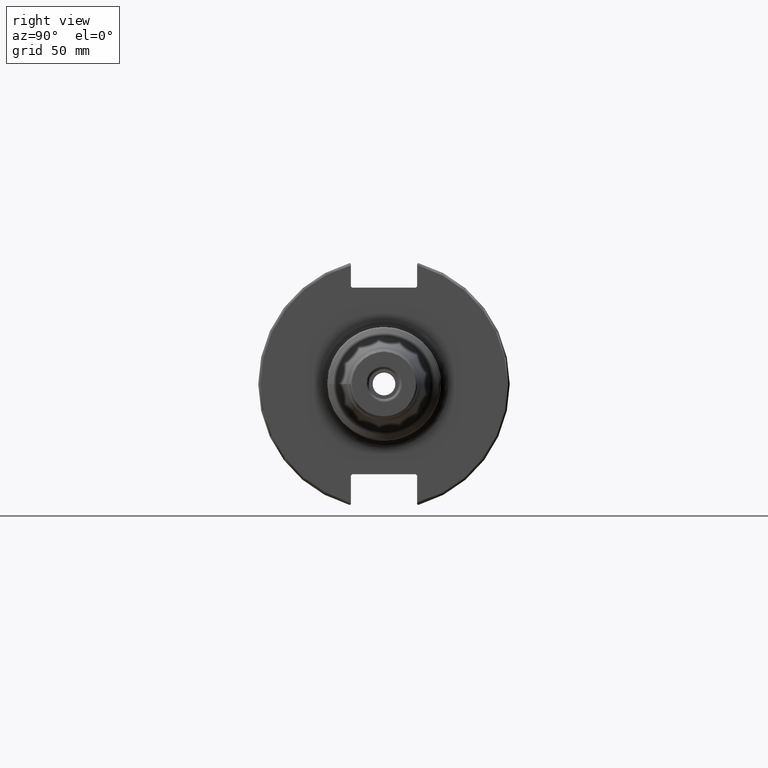
[diagram: clean part render]
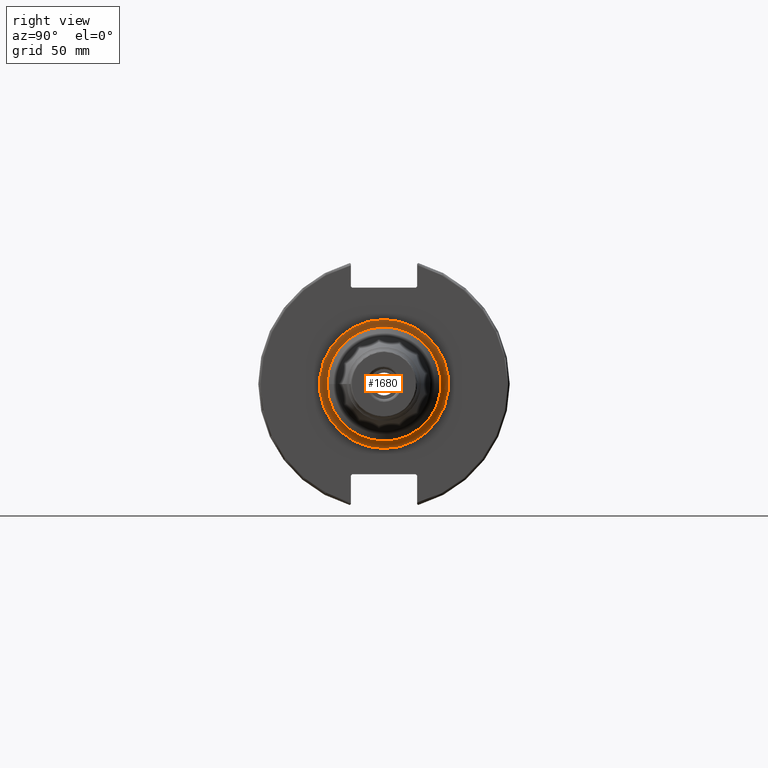
[diagram: same view with one face highlighted and labeled with its STEP entity id]
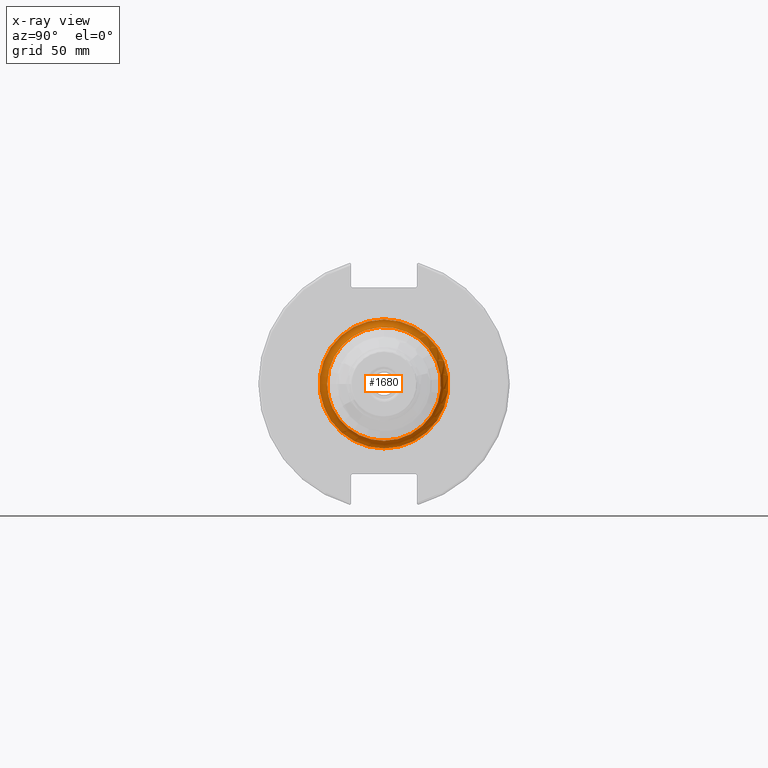
[diagram: x-ray of the same camera — body ghosted, the highlighted face saturated]
A machine part, right view. The second image highlights one B-rep face of the part: STEP entity #1680.
The next image is the same camera in x-ray: the body ghosted, the highlighted face saturated — about 0% of this face is hidden behind the body in this view.
In plain terms, the highlighted toroidal blend (fillet) surface has major radius 25.25 mm and minor (blend) radius 3 mm.
Its self-contained STEP definition (entity closure, byte-faithful):
#96=TOROIDAL_SURFACE('',#1806,25.25,3.);
#167=FACE_OUTER_BOUND('',#269,.T.);
#269=EDGE_LOOP('',(#1135,#1136,#1137,#1138,#1139));
#593=CIRCLE('',#1807,22.25);
#594=CIRCLE('',#1808,3.);
#595=CIRCLE('',#1809,25.25);
#596=CIRCLE('',#1810,22.25);
#697=VERTEX_POINT('',#2599);
#698=VERTEX_POINT('',#2600);
#699=VERTEX_POINT('',#2602);
#871=EDGE_CURVE('',#697,#698,#593,.T.);
#872=EDGE_CURVE('',#698,#699,#594,.T.);
#873=EDGE_CURVE('',#699,#699,#595,.T.);
#874=EDGE_CURVE('',#698,#697,#596,.T.);
#1135=ORIENTED_EDGE('',*,*,#871,.T.);
#1136=ORIENTED_EDGE('',*,*,#872,.T.);
#1137=ORIENTED_EDGE('',*,*,#873,.T.);
#1138=ORIENTED_EDGE('',*,*,#872,.F.);
#1139=ORIENTED_EDGE('',*,*,#874,.T.);
#1680=ADVANCED_FACE('',(#167),#96,.F.);
#1806=AXIS2_PLACEMENT_3D('',#2598,#2015,#2016);
#1807=AXIS2_PLACEMENT_3D('',#2601,#2017,#2018);
#1808=AXIS2_PLACEMENT_3D('',#2603,#2019,#2020);
#1809=AXIS2_PLACEMENT_3D('',#2604,#2021,#2022);
#1810=AXIS2_PLACEMENT_3D('',#2605,#2023,#2024);
#2015=DIRECTION('center_axis',(-1.,0.,0.));
#2016=DIRECTION('ref_axis',(0.,0.,1.));
#2017=DIRECTION('center_axis',(-1.,0.,0.));
#2018=DIRECTION('ref_axis',(0.,-1.,-1.22464679914735E-16));
#2019=DIRECTION('center_axis',(0.,-1.,1.22464679914735E-16));
#2020=DIRECTION('ref_axis',(0.,-1.22464679914735E-16,-1.));
#2021=DIRECTION('center_axis',(1.,0.,0.));
#2022=DIRECTION('ref_axis',(0.,-1.,-1.22464679914735E-16));
#2023=DIRECTION('center_axis',(-1.,0.,0.));
#2024=DIRECTION('ref_axis',(0.,-1.,-1.22464679914735E-16));
#2598=CARTESIAN_POINT('Origin',(22.05,0.,0.));
#2599=CARTESIAN_POINT('',(22.05,-22.25,-2.72483912810286E-15));
#2600=CARTESIAN_POINT('',(22.05,-2.72483912810286E-15,-22.25));
#2601=CARTESIAN_POINT('Origin',(22.05,0.,0.));
#2602=CARTESIAN_POINT('',(19.05,-3.09223316784707E-15,-25.25));
#2603=CARTESIAN_POINT('Origin',(22.05,-3.09223316784707E-15,-25.25));
#2604=CARTESIAN_POINT('Origin',(19.05,0.,0.));
#2605=CARTESIAN_POINT('Origin',(22.05,0.,0.));